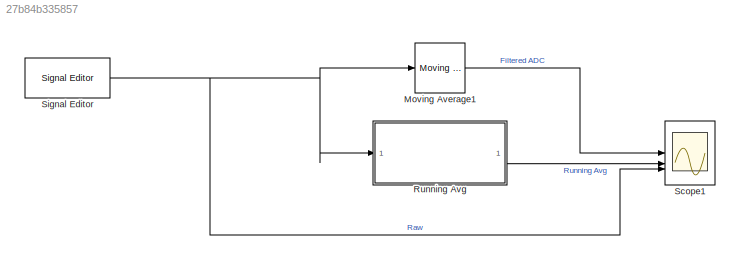
MODEL slx_27b84b335857
KIND model
CONFIG AbsTol = auto
CONFIG EnableMultiTasking = off
CONFIG FixedStep = auto
CONFIG MaxStep = auto
CONFIG MinStep = auto
CONFIG RelTol = 1e-3
CONFIG SampleTimeConstraint = Unconstrained
CONFIG SolverName = VariableStepAuto
CONFIG StartTime = 0.0
CONFIG StopTime = 170
BLOCK [Reference] Moving Average1  REF=dspstat3/Moving
Average
  SourceBlock = dspstat3/Moving\nAverage
  SourceType = dsp.simulink.MovingAverage
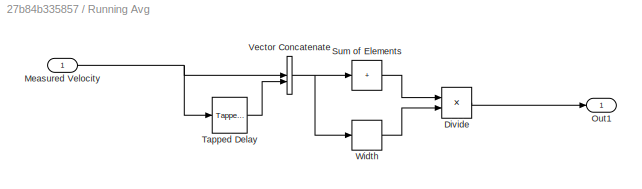
BLOCK [SubSystem] Running Avg
BLOCK [Product] Running Avg/Divide
  Inputs = */
BLOCK [Inport] Running Avg/Measured Velocity
BLOCK [Outport] Running Avg/Out1
BLOCK [Sum] Running Avg/Sum of Elements
  IconShape = rectangular
  Inputs = +
BLOCK [Reference] Running Avg/Tapped Delay  REF=simulink/Discrete/Tapped Delay
  SourceBlock = simulink/Discrete/Tapped Delay
  SourceType = Tapped Delay Line
BLOCK [Concatenate] Running Avg/Vector Concatenate
BLOCK [Width] Running Avg/Width
BLOCK [Scope] Scope1
  Floating = off
  NumInputPorts = 3
  ScopeSpecificationString = Simulink.scopes.TimeScopeBlockCfg('CurrentConfiguration', extmgr.ConfigurationSet(extmgr.Configuration('Core','General UI',true),extmgr.Configuration('Core','Source UI',true),extmgr.Configuration('Sources','WiredSimulink',true,'DataLoggingVariableName','ScopeData1'),extmgr.Configuration('Visuals','Time Domain',true,'SerializedDisplays',{struct('MinYLimReal','-156.25','MaxYLimReal','1406.25','YLabe...<+1535ch>
BLOCK [Reference] Signal Editor  REF=SignalEditorBlockLib/Signal Editor
  LibrarySourceBlock = simulink/Sources/Signal Editor
  SourceBlock = SignalEditorBlockLib/Signal Editor
  SourceType = SignalEditor
  UserDataPersistent = on
LINE Moving Average1:1 -> Scope1:1
LINE Running Avg/Divide:1 -> Running Avg/Out1:1
NET Running Avg/Measured Velocity:1 -> Running Avg/Tapped Delay:1, Running Avg/Vector Concatenate:1
LINE Running Avg/Sum of Elements:1 -> Running Avg/Divide:1
LINE Running Avg/Tapped Delay:1 -> Running Avg/Vector Concatenate:2
NET Running Avg/Vector Concatenate:1 -> Running Avg/Sum of Elements:1, Running Avg/Width:1
LINE Running Avg/Width:1 -> Running Avg/Divide:2
LINE Running Avg:1 -> Scope1:2
NET Signal Editor:1 -> Moving Average1:1, Running Avg:1, Scope1:3
note: NET lines group one-source signal fan-out (src -> all destinations, sorted); 1:1 wires keep LINE
